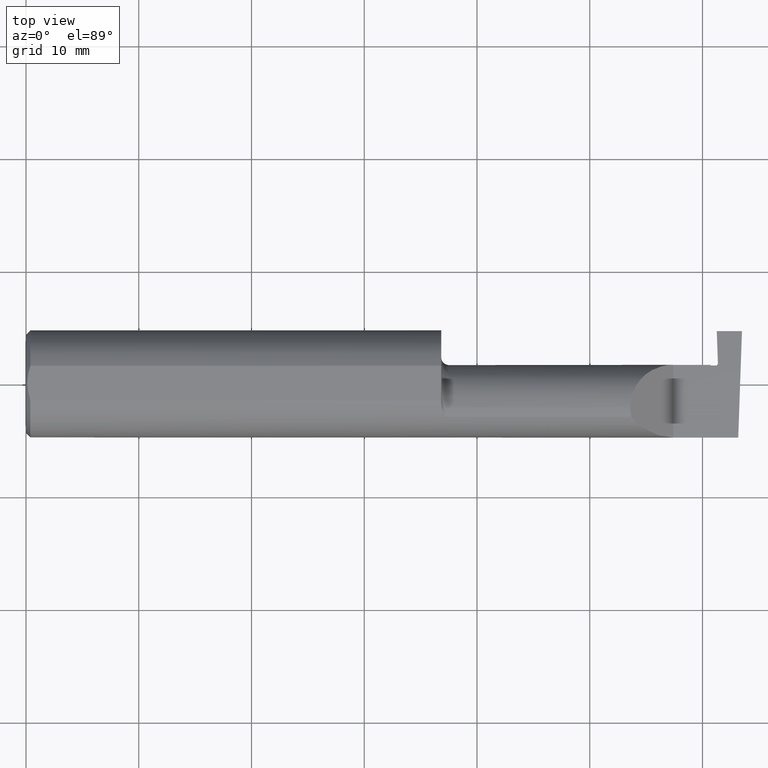
[diagram: clean part render]
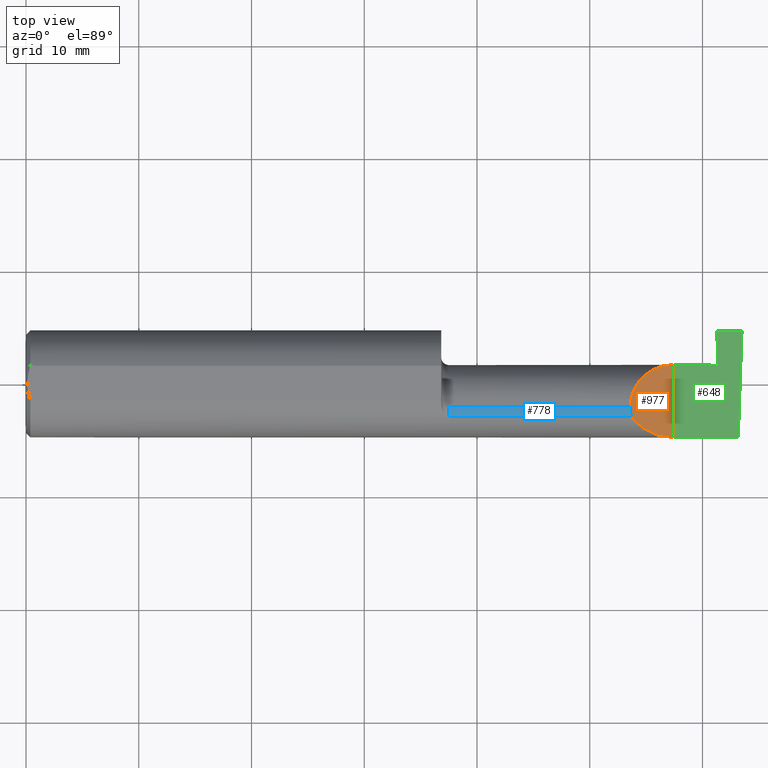
[diagram: same view with three faces highlighted in distinct colors, each labeled with its STEP entity id]
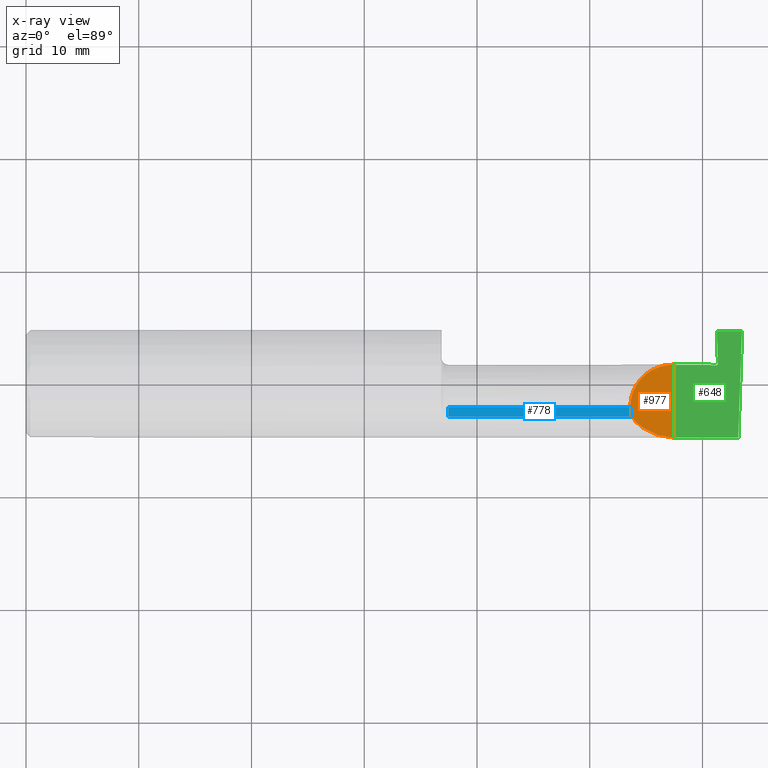
[diagram: x-ray of the same camera — body ghosted, the three highlighted faces saturated]
A machine part, top view with three faces highlighted in distinct colors.
The next image is the same camera in x-ray (body ghosted, the three faces saturated) — at least one of them is partly hidden behind the body in this view.
Their STEP definitions:

[orange] entity #977 — the highlighted planar face has unit normal (-0.7071, 0, -0.7071).
#14 = VERTEX_POINT ( 'NONE', #117 ) ;
#15 = DIRECTION ( 'NONE',  ( -0.7071067811865454633, 0.000000000000000000, 0.7071067811865496822 ) ) ;
#33 = ORIENTED_EDGE ( 'NONE', *, *, #1021, .T. ) ;
#39 = DIRECTION ( 'NONE',  ( -0.7071067811865496822, 0.000000000000000000, -0.7071067811865454633 ) ) ;
#107 = CARTESIAN_POINT ( 'NONE',  ( 2.260000000000000231, 0.06664999999999998703, 2.939152317953647352E-17 ) ) ;
#112 = CARTESIAN_POINT ( 'NONE',  ( 2.260000000000000231, -0.2000000000000000111, 2.939152317953647352E-17 ) ) ;
#117 = CARTESIAN_POINT ( 'NONE',  ( 2.113883229301070532, -0.1172600179964006645, 0.1461167706989302539 ) ) ;
#136 = VERTEX_POINT ( 'NONE', #704 ) ;
#160 = CARTESIAN_POINT ( 'NONE',  ( 2.113883229301070532, -0.1172600179964006645, 0.1461167706989302539 ) ) ;
#202 = LINE ( 'NONE', #440, #913 ) ;
#203 = ORIENTED_EDGE ( 'NONE', *, *, #589, .F. ) ;
#204 = CARTESIAN_POINT ( 'NONE',  ( 2.110000000000000764, -0.09477667630339417504, 0.1499999999999999667 ) ) ;
#216 = ORIENTED_EDGE ( 'NONE', *, *, #272, .F. ) ;
#232 =( BOUNDED_CURVE ( )  B_SPLINE_CURVE ( 3, ( #413, #722, #347, #568 ),
 .UNSPECIFIED., .F., .T. ) 
 B_SPLINE_CURVE_WITH_KNOTS ( ( 4, 4 ),
 ( 4.712388980384688786, 5.606916381293136631 ),
 .UNSPECIFIED. ) 
 CURVE ( )  GEOMETRIC_REPRESENTATION_ITEM ( )  RATIONAL_B_SPLINE_CURVE ( ( 1.000000000000000000, 0.9344226172588802060, 0.9344226172588802060, 1.000000000000000000 ) ) 
 REPRESENTATION_ITEM ( '' )  );
#241 = VERTEX_POINT ( 'NONE', #658 ) ;
#272 = EDGE_CURVE ( 'NONE', #241, #14, #232, .T. ) ;
#335 =( BOUNDED_CURVE ( )  B_SPLINE_CURVE ( 3, ( #160, #488, #204, #588 ),
 .UNSPECIFIED., .F., .F. ) 
 B_SPLINE_CURVE_WITH_KNOTS ( ( 4, 4 ),
 ( 6.055147272130142255, 6.283185307179586232 ),
 .UNSPECIFIED. ) 
 CURVE ( )  GEOMETRIC_REPRESENTATION_ITEM ( )  RATIONAL_B_SPLINE_CURVE ( ( 1.000000000000000000, 0.9956712472009929815, 0.9956712472009929815, 1.000000000000000000 ) ) 
 REPRESENTATION_ITEM ( '' )  );
#347 = CARTESIAN_POINT ( 'NONE',  ( 2.150065971957467070, -0.1623470442677541759, 0.1099340280425336880 ) ) ;
#376 = EDGE_LOOP ( 'NONE', ( #203, #216, #33, #812 ) ) ;
#413 = CARTESIAN_POINT ( 'NONE',  ( 2.260000000000000231, -0.1873499999999999888, 2.939152317953647352E-17 ) ) ;
#440 = CARTESIAN_POINT ( 'NONE',  ( 2.260000000000000231, -0.2000000000000000111, 2.939152317953647352E-17 ) ) ;
#488 = CARTESIAN_POINT ( 'NONE',  ( 2.111300037307155986, -0.1061291577212409298, 0.1486999626928446061 ) ) ;
#514 = PLANE ( 'NONE',  #960 ) ;
#568 = CARTESIAN_POINT ( 'NONE',  ( 2.113883229301070532, -0.1172600179964006645, 0.1461167706989302539 ) ) ;
#581 = VERTEX_POINT ( 'NONE', #1039 ) ;
#588 = CARTESIAN_POINT ( 'NONE',  ( 2.110000000000001208, -0.08334999999999996578, 0.1499999999999999667 ) ) ;
#589 = EDGE_CURVE ( 'NONE', #14, #581, #335, .T. ) ;
#593 = CARTESIAN_POINT ( 'NONE',  ( 2.172132034355964691, 0.06665000000000000091, 0.08786796564403574761 ) ) ;
#658 = CARTESIAN_POINT ( 'NONE',  ( 2.260000000000000231, -0.1873499999999999888, 2.939152317953647352E-17 ) ) ;
#660 = EDGE_CURVE ( 'NONE', #581, #136, #970, .T. ) ;
#671 = CARTESIAN_POINT ( 'NONE',  ( 2.110000000000001208, 0.004517965644035767080, 0.1499999999999999667 ) ) ;
#704 = CARTESIAN_POINT ( 'NONE',  ( 2.260000000000000231, 0.06664999999999998703, 2.939152317953647352E-17 ) ) ;
#722 = CARTESIAN_POINT ( 'NONE',  ( 2.202189699843949633, -0.1873500000000000998, 0.05781030015605104211 ) ) ;
#737 = FACE_OUTER_BOUND ( 'NONE', #376, .T. ) ;
#812 = ORIENTED_EDGE ( 'NONE', *, *, #660, .F. ) ;
#901 = DIRECTION ( 'NONE',  ( -0.000000000000000000, 1.000000000000000000, -0.000000000000000000 ) ) ;
#913 = VECTOR ( 'NONE', #901, 39.37007874015748143 ) ;
#960 = AXIS2_PLACEMENT_3D ( 'NONE', #112, #39, #15 ) ;
#970 =( BOUNDED_CURVE ( )  B_SPLINE_CURVE ( 3, ( #1002, #671, #593, #107 ),
 .UNSPECIFIED., .F., .F. ) 
 B_SPLINE_CURVE_WITH_KNOTS ( ( 4, 4 ),
 ( 0.000000000000000000, 1.570796326794896558 ),
 .UNSPECIFIED. ) 
 CURVE ( )  GEOMETRIC_REPRESENTATION_ITEM ( )  RATIONAL_B_SPLINE_CURVE ( ( 1.000000000000000000, 0.8047378541243649375, 0.8047378541243649375, 1.000000000000000000 ) ) 
 REPRESENTATION_ITEM ( '' )  );
#977 = ADVANCED_FACE ( 'NONE', ( #737 ), #514, .F. ) ;
#1002 = CARTESIAN_POINT ( 'NONE',  ( 2.110000000000001208, -0.08334999999999996578, 0.1499999999999999667 ) ) ;
#1021 = EDGE_CURVE ( 'NONE', #241, #136, #202, .T. ) ;
#1039 = CARTESIAN_POINT ( 'NONE',  ( 2.110000000000001208, -0.08334999999999996578, 0.1499999999999999667 ) ) ;

[blue] entity #778 — the highlighted cylindrical surface (partial cylindrical patch) has radius 3.81 mm, axis along (-1, -0, -0).
#2 = EDGE_CURVE ( 'NONE', #569, #895, #212, .T. ) ;
#9 = ORIENTED_EDGE ( 'NONE', *, *, #115, .T. ) ;
#14 = VERTEX_POINT ( 'NONE', #117 ) ;
#32 = DIRECTION ( 'NONE',  ( -1.000000000000000000, -0.000000000000000000, -0.000000000000000000 ) ) ;
#66 = LINE ( 'NONE', #391, #403 ) ;
#96 = CARTESIAN_POINT ( 'NONE',  ( 1.474999999999999867, -0.1172600179964007477, 0.1461167706989302539 ) ) ;
#115 = EDGE_CURVE ( 'NONE', #569, #14, #66, .T. ) ;
#117 = CARTESIAN_POINT ( 'NONE',  ( 2.113883229301070532, -0.1172600179964006645, 0.1461167706989302539 ) ) ;
#153 = CARTESIAN_POINT ( 'NONE',  ( 1.474999999999999867, -0.08334999999999996578, 0.1499999999999999667 ) ) ;
#160 = CARTESIAN_POINT ( 'NONE',  ( 2.113883229301070532, -0.1172600179964006645, 0.1461167706989302539 ) ) ;
#181 = ORIENTED_EDGE ( 'NONE', *, *, #2, .F. ) ;
#204 = CARTESIAN_POINT ( 'NONE',  ( 2.110000000000000764, -0.09477667630339417504, 0.1499999999999999667 ) ) ;
#212 = CIRCLE ( 'NONE', #349, 0.1499999999999999667 ) ;
#220 = DIRECTION ( 'NONE',  ( 0.000000000000000000, 0.000000000000000000, 1.000000000000000000 ) ) ;
#294 = CARTESIAN_POINT ( 'NONE',  ( 1.450000000000000178, -0.08334999999999996578, 0.000000000000000000 ) ) ;
#335 =( BOUNDED_CURVE ( )  B_SPLINE_CURVE ( 3, ( #160, #488, #204, #588 ),
 .UNSPECIFIED., .F., .F. ) 
 B_SPLINE_CURVE_WITH_KNOTS ( ( 4, 4 ),
 ( 6.055147272130142255, 6.283185307179586232 ),
 .UNSPECIFIED. ) 
 CURVE ( )  GEOMETRIC_REPRESENTATION_ITEM ( )  RATIONAL_B_SPLINE_CURVE ( ( 1.000000000000000000, 0.9956712472009929815, 0.9956712472009929815, 1.000000000000000000 ) ) 
 REPRESENTATION_ITEM ( '' )  );
#349 = AXIS2_PLACEMENT_3D ( 'NONE', #690, #32, #685 ) ;
#365 = DIRECTION ( 'NONE',  ( -1.000000000000000000, -0.000000000000000000, -0.000000000000000000 ) ) ;
#390 = VECTOR ( 'NONE', #365, 39.37007874015748143 ) ;
#391 = CARTESIAN_POINT ( 'NONE',  ( 1.941500000000000004, -0.1172600179964007477, 0.1461167706989302817 ) ) ;
#403 = VECTOR ( 'NONE', #851, 39.37007874015748143 ) ;
#467 = DIRECTION ( 'NONE',  ( -1.000000000000000000, -0.000000000000000000, -0.000000000000000000 ) ) ;
#468 = AXIS2_PLACEMENT_3D ( 'NONE', #294, #467, #220 ) ;
#488 = CARTESIAN_POINT ( 'NONE',  ( 2.111300037307155986, -0.1061291577212409298, 0.1486999626928446061 ) ) ;
#513 = EDGE_LOOP ( 'NONE', ( #949, #723, #181, #9 ) ) ;
#569 = VERTEX_POINT ( 'NONE', #96 ) ;
#581 = VERTEX_POINT ( 'NONE', #1039 ) ;
#588 = CARTESIAN_POINT ( 'NONE',  ( 2.110000000000001208, -0.08334999999999996578, 0.1499999999999999667 ) ) ;
#589 = EDGE_CURVE ( 'NONE', #14, #581, #335, .T. ) ;
#685 = DIRECTION ( 'NONE',  ( 0.000000000000000000, 0.000000000000000000, 1.000000000000000000 ) ) ;
#690 = CARTESIAN_POINT ( 'NONE',  ( 1.474999999999999867, -0.08334999999999996578, 0.000000000000000000 ) ) ;
#723 = ORIENTED_EDGE ( 'NONE', *, *, #1008, .T. ) ;
#765 = CYLINDRICAL_SURFACE ( 'NONE', #468, 0.1499999999999999667 ) ;
#778 = ADVANCED_FACE ( 'NONE', ( #936 ), #765, .T. ) ;
#820 = LINE ( 'NONE', #896, #390 ) ;
#851 = DIRECTION ( 'NONE',  ( 1.000000000000000000, 0.000000000000000000, 0.000000000000000000 ) ) ;
#895 = VERTEX_POINT ( 'NONE', #153 ) ;
#896 = CARTESIAN_POINT ( 'NONE',  ( 1.450000000000000178, -0.08334999999999996578, 0.1499999999999999667 ) ) ;
#936 = FACE_OUTER_BOUND ( 'NONE', #513, .T. ) ;
#949 = ORIENTED_EDGE ( 'NONE', *, *, #589, .T. ) ;
#1008 = EDGE_CURVE ( 'NONE', #581, #895, #820, .T. ) ;
#1039 = CARTESIAN_POINT ( 'NONE',  ( 2.110000000000001208, -0.08334999999999996578, 0.1499999999999999667 ) ) ;

[green] entity #648 — the highlighted planar face has unit normal (-0, 0, -1).
#36 = ORIENTED_EDGE ( 'NONE', *, *, #861, .T. ) ;
#41 = CARTESIAN_POINT ( 'NONE',  ( 2.500000000000000000, -0.2000000000000000111, 0.000000000000000000 ) ) ;
#54 = CARTESIAN_POINT ( 'NONE',  ( 2.415937515934000857, 0.07189429647680797841, -3.426109688323797624E-11 ) ) ;
#61 = VECTOR ( 'NONE', #734, 39.37007874015748143 ) ;
#68 = CARTESIAN_POINT ( 'NONE',  ( 2.399999999999999911, 0.1846500000000000363, -3.367778697655196529E-19 ) ) ;
#74 = ORIENTED_EDGE ( 'NONE', *, *, #323, .T. ) ;
#105 = VECTOR ( 'NONE', #138, 39.37007874015748143 ) ;
#114 = DIRECTION ( 'NONE',  ( -1.224646799147353700E-16, 0.000000000000000000, -1.000000000000000000 ) ) ;
#136 = VERTEX_POINT ( 'NONE', #704 ) ;
#138 = DIRECTION ( 'NONE',  ( 1.000000000000000000, -0.000000000000000000, -0.000000000000000000 ) ) ;
#154 = LINE ( 'NONE', #482, #61 ) ;
#157 = ORIENTED_EDGE ( 'NONE', *, *, #234, .F. ) ;
#192 = VECTOR ( 'NONE', #426, 39.37007874015748854 ) ;
#194 = ORIENTED_EDGE ( 'NONE', *, *, #447, .F. ) ;
#199 = EDGE_CURVE ( 'NONE', #357, #912, #946, .T. ) ;
#202 = LINE ( 'NONE', #440, #913 ) ;
#208 = VERTEX_POINT ( 'NONE', #245 ) ;
#211 = CARTESIAN_POINT ( 'NONE',  ( 2.411999999986550236, 0.1846500000000000363, -3.367778697655196529E-19 ) ) ;
#224 =( BOUNDED_CURVE ( )  B_SPLINE_CURVE ( 3, ( #626, #394, #463, #771 ),
 .UNSPECIFIED., .F., .F. ) 
 B_SPLINE_CURVE_WITH_KNOTS ( ( 4, 4 ),
 ( 0.000000000000000000, 0.0002839584297175429695 ),
 .UNSPECIFIED. ) 
 CURVE ( )  GEOMETRIC_REPRESENTATION_ITEM ( )  RATIONAL_B_SPLINE_CURVE ( ( 1.000000000000000000, 0.7964389136393332791, 0.7964389136393332791, 1.000000000000000000 ) ) 
 REPRESENTATION_ITEM ( '' )  );
#234 = EDGE_CURVE ( 'NONE', #136, #697, #799, .T. ) ;
#236 = VERTEX_POINT ( 'NONE', #730 ) ;
#241 = VERTEX_POINT ( 'NONE', #658 ) ;
#245 = CARTESIAN_POINT ( 'NONE',  ( 2.415937515934000857, 0.07189429647680797841, -3.426109688323797624E-11 ) ) ;
#293 = ORIENTED_EDGE ( 'NONE', *, *, #434, .T. ) ;
#323 = EDGE_CURVE ( 'NONE', #236, #208, #1027, .T. ) ;
#341 = CARTESIAN_POINT ( 'NONE',  ( 1.450000000000000178, 0.06665000000000001479, 1.285879139104721472E-16 ) ) ;
#357 = VERTEX_POINT ( 'NONE', #1026 ) ;
#358 = CARTESIAN_POINT ( 'NONE',  ( 2.390000000000253699, 0.06664999999974562106, 1.168855585177079669E-17 ) ) ;
#368 = ORIENTED_EDGE ( 'NONE', *, *, #1021, .F. ) ;
#385 = VERTEX_POINT ( 'NONE', #845 ) ;
#394 = CARTESIAN_POINT ( 'NONE',  ( 2.416084614202273606, 0.06768195317419506418, -3.358980250182049805E-11 ) ) ;
#415 = CARTESIAN_POINT ( 'NONE',  ( 2.392000000002255877, 0.06465000000021248194, -3.229903329993915884E-11 ) ) ;
#426 = DIRECTION ( 'NONE',  ( -0.03489949670249478664, -0.9993908270190959842, 0.000000000000000000 ) ) ;
#434 = EDGE_CURVE ( 'NONE', #208, #357, #224, .T. ) ;
#440 = CARTESIAN_POINT ( 'NONE',  ( 2.260000000000000231, -0.2000000000000000111, 2.939152317953647352E-17 ) ) ;
#441 = FACE_OUTER_BOUND ( 'NONE', #532, .T. ) ;
#447 = EDGE_CURVE ( 'NONE', #236, #727, #703, .T. ) ;
#463 = CARTESIAN_POINT ( 'NONE',  ( 2.413156691056138392, 0.06464999999996402791, -3.299690361322282313E-11 ) ) ;
#482 = CARTESIAN_POINT ( 'NONE',  ( 3.749399456654646757E-32, -0.1873499999999999888, 3.061616997868384127E-16 ) ) ;
#532 = EDGE_LOOP ( 'NONE', ( #1001, #963, #194, #74, #293, #650, #36, #157, #368 ) ) ;
#570 = EDGE_CURVE ( 'NONE', #385, #241, #154, .T. ) ;
#626 = CARTESIAN_POINT ( 'NONE',  ( 2.415937515934000857, 0.07189429647680797841, -3.426109688323797624E-11 ) ) ;
#648 = ADVANCED_FACE ( 'NONE', ( #441 ), #903, .F. ) ;
#650 = ORIENTED_EDGE ( 'NONE', *, *, #199, .T. ) ;
#654 = CARTESIAN_POINT ( 'NONE',  ( 2.392000000002255877, 0.06465000000021248194, -3.229903329993915884E-11 ) ) ;
#658 = CARTESIAN_POINT ( 'NONE',  ( 2.260000000000000231, -0.1873499999999999888, 2.939152317953647352E-17 ) ) ;
#667 = LINE ( 'NONE', #1000, #192 ) ;
#668 = CARTESIAN_POINT ( 'NONE',  ( 2.500000000000000000, 0.1846500000000000363, 0.000000000000000000 ) ) ;
#676 = DIRECTION ( 'NONE',  ( -1.000000000000000000, 0.000000000000000000, 1.224646799147353700E-16 ) ) ;
#697 = VERTEX_POINT ( 'NONE', #358 ) ;
#703 = LINE ( 'NONE', #68, #105 ) ;
#704 = CARTESIAN_POINT ( 'NONE',  ( 2.260000000000000231, 0.06664999999999998703, 2.939152317953647352E-17 ) ) ;
#727 = VERTEX_POINT ( 'NONE', #668 ) ;
#730 = CARTESIAN_POINT ( 'NONE',  ( 2.411999999986550236, 0.1846500000000000363, -3.367778697655196529E-19 ) ) ;
#734 = DIRECTION ( 'NONE',  ( -1.000000000000000000, -0.000000000000000000, -0.000000000000000000 ) ) ;
#771 = CARTESIAN_POINT ( 'NONE',  ( 2.408941780145882117, 0.06464999999997883551, -4.879301752118370835E-11 ) ) ;
#783 = B_SPLINE_CURVE_WITH_KNOTS ( 'NONE', 1,
 ( #415, #969 ),
 .UNSPECIFIED., .F., .F.,
 ( 2, 2 ),
 ( 0.000000000000000000, 7.184204899613188004E-05 ),
 .UNSPECIFIED. ) ;
#793 = DIRECTION ( 'NONE',  ( 1.000000000000000000, 0.000000000000000000, 0.000000000000000000 ) ) ;
#799 = LINE ( 'NONE', #341, #857 ) ;
#801 = CARTESIAN_POINT ( 'NONE',  ( 2.392000000002255877, 0.06465000000021248194, -3.229903329993915884E-11 ) ) ;
#803 = CARTESIAN_POINT ( 'NONE',  ( 2.408941780145882117, 0.06464999999997883551, -4.879301752118370835E-11 ) ) ;
#845 = CARTESIAN_POINT ( 'NONE',  ( 2.487009473749072441, -0.1873499999999999055, 0.000000000000000000 ) ) ;
#857 = VECTOR ( 'NONE', #793, 39.37007874015748143 ) ;
#861 = EDGE_CURVE ( 'NONE', #912, #697, #783, .T. ) ;
#901 = DIRECTION ( 'NONE',  ( -0.000000000000000000, 1.000000000000000000, -0.000000000000000000 ) ) ;
#903 = PLANE ( 'NONE',  #944 ) ;
#912 = VERTEX_POINT ( 'NONE', #801 ) ;
#913 = VECTOR ( 'NONE', #901, 39.37007874015748143 ) ;
#944 = AXIS2_PLACEMENT_3D ( 'NONE', #41, #114, #676 ) ;
#946 = B_SPLINE_CURVE_WITH_KNOTS ( 'NONE', 1,
 ( #803, #654 ),
 .UNSPECIFIED., .F., .F.,
 ( 2, 2 ),
 ( 6.938893903907228378E-18, 0.0004303212156481148187 ),
 .UNSPECIFIED. ) ;
#963 = ORIENTED_EDGE ( 'NONE', *, *, #984, .F. ) ;
#969 = CARTESIAN_POINT ( 'NONE',  ( 2.390000000000253699, 0.06664999999974562106, 1.168855585177079669E-17 ) ) ;
#984 = EDGE_CURVE ( 'NONE', #727, #385, #667, .T. ) ;
#1000 = CARTESIAN_POINT ( 'NONE',  ( 2.500000000000000000, 0.1846500000000000363, 0.000000000000000000 ) ) ;
#1001 = ORIENTED_EDGE ( 'NONE', *, *, #570, .F. ) ;
#1021 = EDGE_CURVE ( 'NONE', #241, #136, #202, .T. ) ;
#1026 = CARTESIAN_POINT ( 'NONE',  ( 2.408941780145882117, 0.06464999999997883551, -4.879301752118370835E-11 ) ) ;
#1027 = B_SPLINE_CURVE_WITH_KNOTS ( 'NONE', 1,
 ( #211, #54 ),
 .UNSPECIFIED., .F., .F.,
 ( 2, 2 ),
 ( 5.032821247878813151E-15, 0.002865740601252702441 ),
 .UNSPECIFIED. ) ;